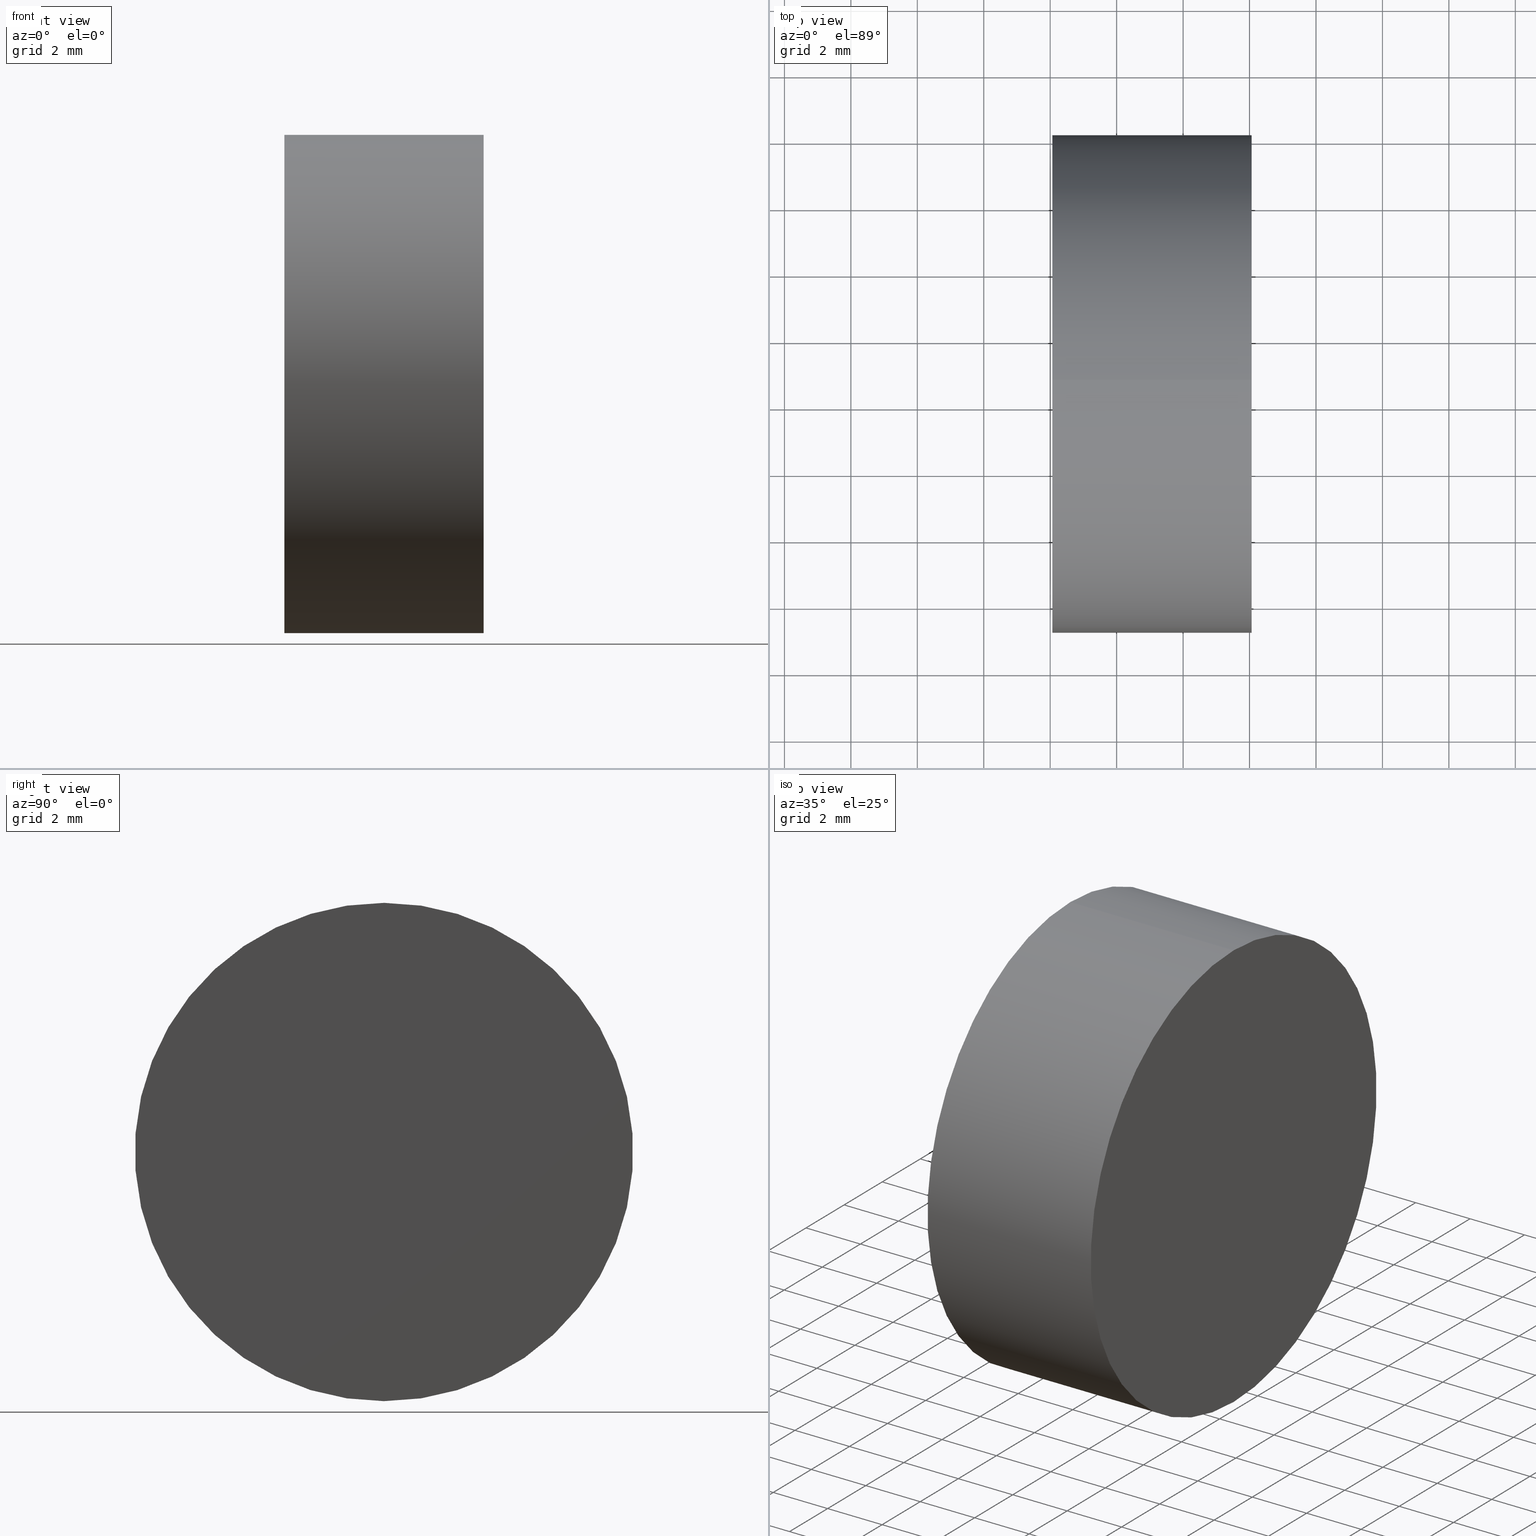
[diagram: canonical four-view strip — front | top / right | iso, engineering-drawing reading convention]
A machine part, canonical four-view strip (front | top / right | iso — engineering-drawing reading convention). The complete STEP part file that produces these views, byte-faithful:
ISO-10303-21;
HEADER;
FILE_DESCRIPTION (( 'STEP AP214' ),
    '1' );
FILE_NAME ('260070.STEP',
    '2019-07-16T03:17:06',
    ( '' ),
    ( '' ),
    'SwSTEP 2.0',
    'SolidWorks 2016',
    '' );
FILE_SCHEMA (( 'AUTOMOTIVE_DESIGN' ));
ENDSEC;

DATA;
#1 = AXIS2_PLACEMENT_3D ( 'NONE', #71, #85, #140 ) ;
#2 =( NAMED_UNIT ( * ) PLANE_ANGLE_UNIT ( ) SI_UNIT ( $, .RADIAN. ) );
#3 = MANIFOLD_SOLID_BREP ( '��ת1', #81 ) ;
#4 = EDGE_CURVE ( 'NONE', #12, #138, #10, .T. ) ;
#5 = SURFACE_SIDE_STYLE ('',( #134 ) ) ;
#6 = MECHANICAL_DESIGN_GEOMETRIC_PRESENTATION_REPRESENTATION (  '', ( #34 ), #44 ) ;
#7 = DIRECTION ( 'NONE',  ( -1.000000000000000000, -0.0000000000000000000, -0.0000000000000000000 ) ) ;
#8 = ORIENTED_EDGE ( 'NONE', *, *, #123, .T. ) ;
#9 = ADVANCED_FACE ( 'NONE', ( #64 ), #42, .T. ) ;
#10 = LINE ( 'NONE', #111, #103 ) ;
#11 = VERTEX_POINT ( 'NONE', #110 ) ;
#12 = VERTEX_POINT ( 'NONE', #99 ) ;
#13 = AXIS2_PLACEMENT_3D ( 'NONE', #91, #41, #51 ) ;
#14 = PRODUCT_DEFINITION ( 'δ֪', '', #89, #31 ) ;
#15 = FILL_AREA_STYLE_COLOUR ( '', #23 ) ;
#16 = APPLICATION_PROTOCOL_DEFINITION ( 'draft international standard', 'automotive_design', 1998, #49 ) ;
#17 = ORIENTED_EDGE ( 'NONE', *, *, #19, .T. ) ;
#18 =( NAMED_UNIT ( * ) SI_UNIT ( $, .STERADIAN. ) SOLID_ANGLE_UNIT ( ) );
#19 = EDGE_CURVE ( 'NONE', #112, #12, #101, .T. ) ;
#20 = DIRECTION ( 'NONE',  ( 1.000000000000000000, 0.0000000000000000000, 0.0000000000000000000 ) ) ;
#21 = COLOUR_RGB ( '',1.000000000000000000, 1.000000000000000000, 1.000000000000000000 ) ;
#22 = AXIS2_PLACEMENT_3D ( 'NONE', #130, #20, #100 ) ;
#23 = COLOUR_RGB ( '',1.000000000000000000, 1.000000000000000000, 1.000000000000000000 ) ;
#24 = EDGE_LOOP ( 'NONE', ( #70, #38 ) ) ;
#25 =( GEOMETRIC_REPRESENTATION_CONTEXT ( 3 ) GLOBAL_UNCERTAINTY_ASSIGNED_CONTEXT ( ( #124 ) ) GLOBAL_UNIT_ASSIGNED_CONTEXT ( ( #75, #29, #18 ) ) REPRESENTATION_CONTEXT ( 'NONE', 'WORKASPACE' ) );
#26 = CARTESIAN_POINT ( 'NONE',  ( 0.0000000000000000000, 0.0000000000000000000, 0.0000000000000000000 ) ) ;
#27 = EDGE_CURVE ( 'NONE', #11, #138, #68, .T. ) ;
#28 = PLANE ( 'NONE',  #22 ) ;
#29 =( NAMED_UNIT ( * ) PLANE_ANGLE_UNIT ( ) SI_UNIT ( $, .RADIAN. ) );
#30 = CARTESIAN_POINT ( 'NONE',  ( 127.0004009963080200, 38.64658967450770900, 0.0000000000000000000 ) ) ;
#31 = PRODUCT_DEFINITION_CONTEXT ( 'detailed design', #49, 'design' ) ;
#32 = MECHANICAL_DESIGN_GEOMETRIC_PRESENTATION_REPRESENTATION (  '', ( #113 ), #25 ) ;
#33 = CARTESIAN_POINT ( 'NONE',  ( 136.0639985298940900, 38.64658967450770900, 0.0000000000000000000 ) ) ;
#34 = STYLED_ITEM ( 'NONE', ( #80 ), #69 ) ;
#35 =( NAMED_UNIT ( * ) SI_UNIT ( $, .STERADIAN. ) SOLID_ANGLE_UNIT ( ) );
#36 = CARTESIAN_POINT ( 'NONE',  ( 127.0004009963080200, 38.64658967450770900, 7.500000000000000000 ) ) ;
#37 = PRODUCT_CONTEXT ( 'NONE', #106, 'mechanical' ) ;
#38 = ORIENTED_EDGE ( 'NONE', *, *, #123, .F. ) ;
#39 = AXIS2_PLACEMENT_3D ( 'NONE', #30, #122, #60 ) ;
#40 = CARTESIAN_POINT ( 'NONE',  ( 136.0639985298940900, 38.64658967450770900, 0.0000000000000000000 ) ) ;
#41 = DIRECTION ( 'NONE',  ( -1.000000000000000000, -0.0000000000000000000, -0.0000000000000000000 ) ) ;
#42 = CYLINDRICAL_SURFACE ( 'NONE', #83, 7.500000000000000000 ) ;
#43 = ORIENTED_EDGE ( 'NONE', *, *, #118, .F. ) ;
#44 =( GEOMETRIC_REPRESENTATION_CONTEXT ( 3 ) GLOBAL_UNCERTAINTY_ASSIGNED_CONTEXT ( ( #93 ) ) GLOBAL_UNIT_ASSIGNED_CONTEXT ( ( #96, #86, #107 ) ) REPRESENTATION_CONTEXT ( 'NONE', 'WORKASPACE' ) );
#45 = ORIENTED_EDGE ( 'NONE', *, *, #62, .T. ) ;
#46 = ORIENTED_EDGE ( 'NONE', *, *, #4, .F. ) ;
#47 = FACE_OUTER_BOUND ( 'NONE', #104, .T. ) ;
#48 = ORIENTED_EDGE ( 'NONE', *, *, #27, .T. ) ;
#49 = APPLICATION_CONTEXT ( 'automotive_design' ) ;
#50 = PRESENTATION_LAYER_ASSIGNMENT (  '', '', ( #113 ) ) ;
#51 = DIRECTION ( 'NONE',  ( 0.0000000000000000000, 0.0000000000000000000, 1.000000000000000000 ) ) ;
#52 = ORIENTED_EDGE ( 'NONE', *, *, #118, .T. ) ;
#53 = PRODUCT_DEFINITION_SHAPE ( 'NONE', 'NONE',  #14 ) ;
#54 = PRODUCT ( '260070', '260070', '', ( #37 ) ) ;
#55 = PLANE ( 'NONE',  #84 ) ;
#56 = APPLICATION_PROTOCOL_DEFINITION ( 'draft international standard', 'automotive_design', 1998, #106 ) ;
#57 = DIRECTION ( 'NONE',  ( 1.000000000000000000, 0.0000000000000000000, 0.0000000000000000000 ) ) ;
#58 = AXIS2_PLACEMENT_3D ( 'NONE', #26, #139, #57 ) ;
#59 = DIRECTION ( 'NONE',  ( 0.0000000000000000000, 0.0000000000000000000, 1.000000000000000000 ) ) ;
#60 = DIRECTION ( 'NONE',  ( 0.0000000000000000000, 0.0000000000000000000, 1.000000000000000000 ) ) ;
#61 = EDGE_LOOP ( 'NONE', ( #46, #8, #52, #132 ) ) ;
#62 = EDGE_CURVE ( 'NONE', #138, #11, #131, .T. ) ;
#63 = ADVANCED_FACE ( 'NONE', ( #47 ), #28, .F. ) ;
#64 = FACE_OUTER_BOUND ( 'NONE', #61, .T. ) ;
#65 = FILL_AREA_STYLE_COLOUR ( '', #21 ) ;
#66 = CARTESIAN_POINT ( 'NONE',  ( 136.0639985298940900, 38.64658967450770900, 7.500000000000000000 ) ) ;
#67 =( LENGTH_UNIT ( ) NAMED_UNIT ( * ) SI_UNIT ( .MILLI., .METRE. ) );
#68 = CIRCLE ( 'NONE', #136, 7.500000000000000000 ) ;
#69 = ADVANCED_BREP_SHAPE_REPRESENTATION ( '260070', ( #3, #58 ), #115 ) ;
#70 = ORIENTED_EDGE ( 'NONE', *, *, #19, .F. ) ;
#71 = CARTESIAN_POINT ( 'NONE',  ( 136.0639985298940900, 38.64658967450770900, 0.0000000000000000000 ) ) ;
#72 = VECTOR ( 'NONE', #127, 1000.000000000000000 ) ;
#73 = DIRECTION ( 'NONE',  ( 0.0000000000000000000, 0.0000000000000000000, 1.000000000000000000 ) ) ;
#74 = AXIS2_PLACEMENT_3D ( 'NONE', #40, #76, #120 ) ;
#75 =( LENGTH_UNIT ( ) NAMED_UNIT ( * ) SI_UNIT ( .MILLI., .METRE. ) );
#76 = DIRECTION ( 'NONE',  ( -1.000000000000000000, -0.0000000000000000000, -0.0000000000000000000 ) ) ;
#77 = CYLINDRICAL_SURFACE ( 'NONE', #39, 7.500000000000000000 ) ;
#78 = PRESENTATION_LAYER_ASSIGNMENT (  '', '', ( #34 ) ) ;
#79 = ORIENTED_EDGE ( 'NONE', *, *, #4, .T. ) ;
#80 = PRESENTATION_STYLE_ASSIGNMENT (( #119 ) ) ;
#81 = CLOSED_SHELL ( 'NONE', ( #102, #114, #9, #63 ) ) ;
#82 = FACE_OUTER_BOUND ( 'NONE', #24, .T. ) ;
#83 = AXIS2_PLACEMENT_3D ( 'NONE', #129, #121, #59 ) ;
#84 = AXIS2_PLACEMENT_3D ( 'NONE', #33, #125, #92 ) ;
#85 = DIRECTION ( 'NONE',  ( -1.000000000000000000, -0.0000000000000000000, -0.0000000000000000000 ) ) ;
#86 =( NAMED_UNIT ( * ) PLANE_ANGLE_UNIT ( ) SI_UNIT ( $, .RADIAN. ) );
#87 = SHAPE_DEFINITION_REPRESENTATION ( #53, #69 ) ;
#88 = CIRCLE ( 'NONE', #1, 7.500000000000000000 ) ;
#89 = PRODUCT_DEFINITION_FORMATION_WITH_SPECIFIED_SOURCE ( '�κ�', '', #54, .NOT_KNOWN. ) ;
#90 = SURFACE_STYLE_USAGE ( .BOTH. , #5 ) ;
#91 = CARTESIAN_POINT ( 'NONE',  ( 130.0639985298940900, 38.64658967450770900, 0.0000000000000000000 ) ) ;
#92 = DIRECTION ( 'NONE',  ( -0.0000000000000000000, 0.0000000000000000000, 1.000000000000000000 ) ) ;
#93 = UNCERTAINTY_MEASURE_WITH_UNIT (LENGTH_MEASURE( 1.000000000000000100E-005 ), #96, 'distance_accuracy_value', 'NONE');
#94 = PRODUCT_RELATED_PRODUCT_CATEGORY ( 'part', '', ( #54 ) ) ;
#95 = CARTESIAN_POINT ( 'NONE',  ( 130.0639985298940900, 38.64658967450770900, -7.500000000000000000 ) ) ;
#96 =( LENGTH_UNIT ( ) NAMED_UNIT ( * ) SI_UNIT ( .MILLI., .METRE. ) );
#97 = EDGE_LOOP ( 'NONE', ( #17, #79, #137, #43 ) ) ;
#98 = DIRECTION ( 'NONE',  ( -1.000000000000000000, -0.0000000000000000000, -0.0000000000000000000 ) ) ;
#99 = CARTESIAN_POINT ( 'NONE',  ( 136.0639985298940900, 38.64658967450770900, -7.500000000000000000 ) ) ;
#100 = DIRECTION ( 'NONE',  ( 0.0000000000000000000, 0.0000000000000000000, -1.000000000000000000 ) ) ;
#101 = CIRCLE ( 'NONE', #74, 7.500000000000000000 ) ;
#102 = ADVANCED_FACE ( 'NONE', ( #133 ), #77, .T. ) ;
#103 = VECTOR ( 'NONE', #98, 1000.000000000000000 ) ;
#104 = EDGE_LOOP ( 'NONE', ( #48, #45 ) ) ;
#105 = FILL_AREA_STYLE ('',( #65 ) ) ;
#106 = APPLICATION_CONTEXT ( 'automotive_design' ) ;
#107 =( NAMED_UNIT ( * ) SI_UNIT ( $, .STERADIAN. ) SOLID_ANGLE_UNIT ( ) );
#108 = PRESENTATION_STYLE_ASSIGNMENT (( #90 ) ) ;
#109 = FILL_AREA_STYLE ('',( #15 ) ) ;
#110 = CARTESIAN_POINT ( 'NONE',  ( 130.0639985298940900, 38.64658967450770900, 7.500000000000000000 ) ) ;
#111 = CARTESIAN_POINT ( 'NONE',  ( 127.0004009963080200, 38.64658967450770900, -7.500000000000000000 ) ) ;
#112 = VERTEX_POINT ( 'NONE', #66 ) ;
#113 = STYLED_ITEM ( 'NONE', ( #108 ), #3 ) ;
#114 = ADVANCED_FACE ( 'NONE', ( #82 ), #55, .F. ) ;
#115 =( GEOMETRIC_REPRESENTATION_CONTEXT ( 3 ) GLOBAL_UNCERTAINTY_ASSIGNED_CONTEXT ( ( #117 ) ) GLOBAL_UNIT_ASSIGNED_CONTEXT ( ( #67, #2, #35 ) ) REPRESENTATION_CONTEXT ( 'NONE', 'WORKASPACE' ) );
#116 = SURFACE_STYLE_FILL_AREA ( #109 ) ;
#117 = UNCERTAINTY_MEASURE_WITH_UNIT (LENGTH_MEASURE( 1.000000000000000100E-005 ), #67, 'distance_accuracy_value', 'NONE');
#118 = EDGE_CURVE ( 'NONE', #112, #11, #135, .T. ) ;
#119 = SURFACE_STYLE_USAGE ( .BOTH. , #126 ) ;
#120 = DIRECTION ( 'NONE',  ( 0.0000000000000000000, 0.0000000000000000000, 1.000000000000000000 ) ) ;
#121 = DIRECTION ( 'NONE',  ( -1.000000000000000000, -0.0000000000000000000, -0.0000000000000000000 ) ) ;
#122 = DIRECTION ( 'NONE',  ( -1.000000000000000000, -0.0000000000000000000, -0.0000000000000000000 ) ) ;
#123 = EDGE_CURVE ( 'NONE', #12, #112, #88, .T. ) ;
#124 = UNCERTAINTY_MEASURE_WITH_UNIT (LENGTH_MEASURE( 1.000000000000000100E-005 ), #75, 'distance_accuracy_value', 'NONE');
#125 = DIRECTION ( 'NONE',  ( -1.000000000000000000, 0.0000000000000000000, -0.0000000000000000000 ) ) ;
#126 = SURFACE_SIDE_STYLE ('',( #116 ) ) ;
#127 = DIRECTION ( 'NONE',  ( -1.000000000000000000, -0.0000000000000000000, -0.0000000000000000000 ) ) ;
#128 = CARTESIAN_POINT ( 'NONE',  ( 130.0639985298940900, 38.64658967450770900, 0.0000000000000000000 ) ) ;
#129 = CARTESIAN_POINT ( 'NONE',  ( 127.0004009963080200, 38.64658967450770900, 0.0000000000000000000 ) ) ;
#130 = CARTESIAN_POINT ( 'NONE',  ( 130.0639985298940900, 38.64658967450770900, 0.0000000000000000000 ) ) ;
#131 = CIRCLE ( 'NONE', #13, 7.500000000000000000 ) ;
#132 = ORIENTED_EDGE ( 'NONE', *, *, #62, .F. ) ;
#133 = FACE_OUTER_BOUND ( 'NONE', #97, .T. ) ;
#134 = SURFACE_STYLE_FILL_AREA ( #105 ) ;
#135 = LINE ( 'NONE', #36, #72 ) ;
#136 = AXIS2_PLACEMENT_3D ( 'NONE', #128, #7, #73 ) ;
#137 = ORIENTED_EDGE ( 'NONE', *, *, #27, .F. ) ;
#138 = VERTEX_POINT ( 'NONE', #95 ) ;
#139 = DIRECTION ( 'NONE',  ( 0.0000000000000000000, 0.0000000000000000000, 1.000000000000000000 ) ) ;
#140 = DIRECTION ( 'NONE',  ( 0.0000000000000000000, 0.0000000000000000000, 1.000000000000000000 ) ) ;
ENDSEC;
END-ISO-10303-21;
